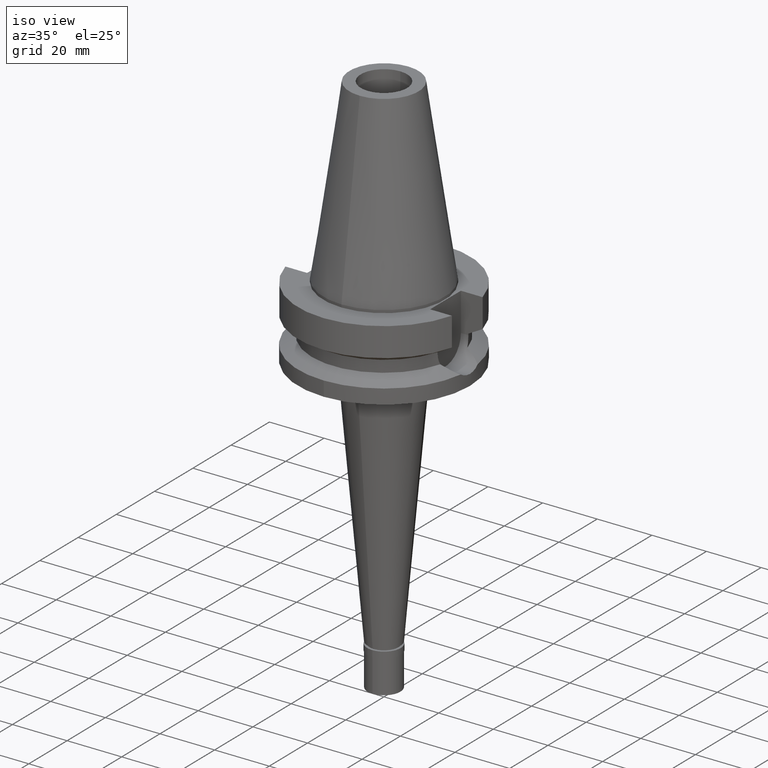
[diagram: clean part render]
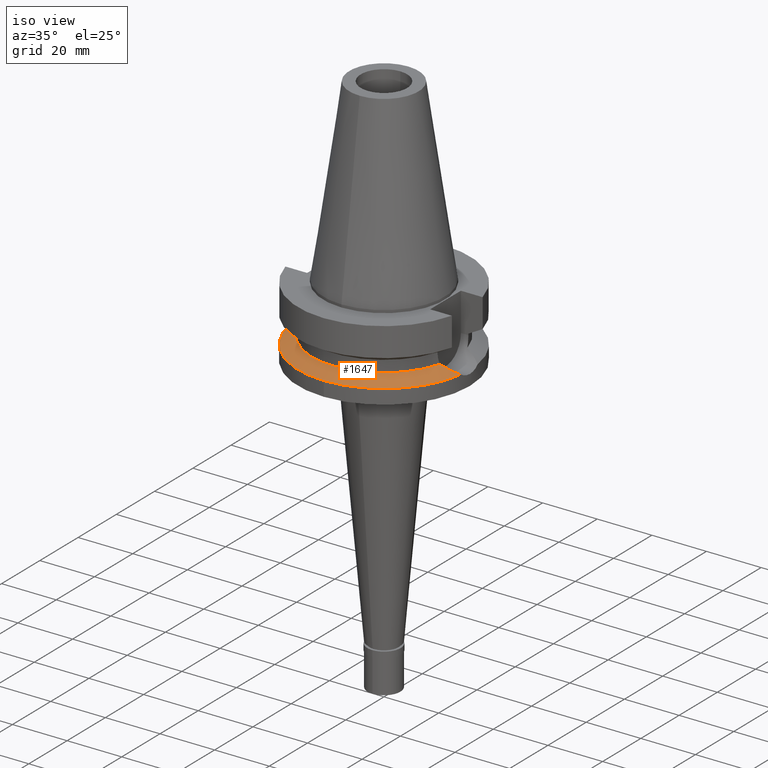
[diagram: same view with one face highlighted and labeled with its STEP entity id]
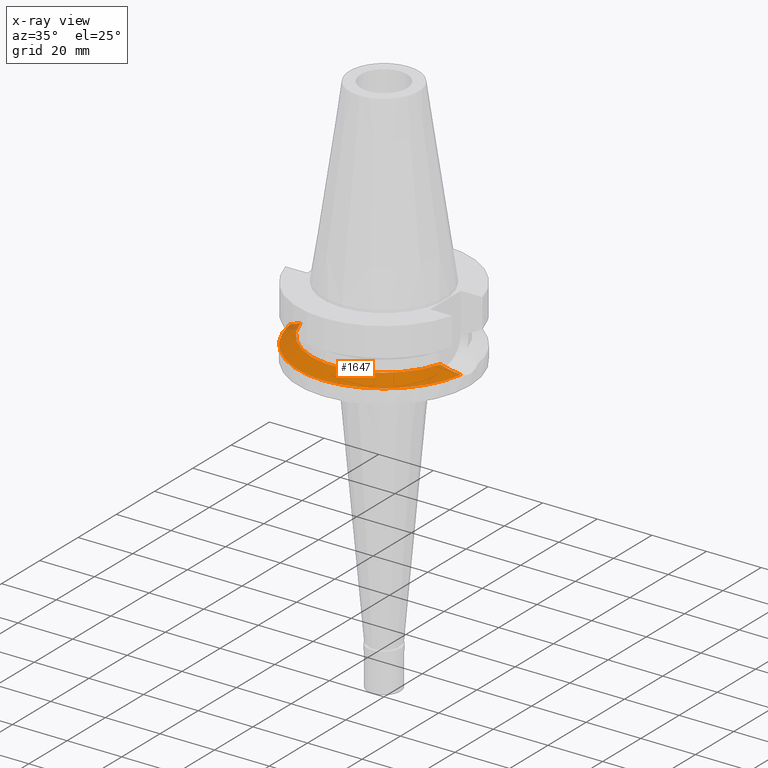
[diagram: x-ray of the same camera — body ghosted, the highlighted face saturated]
A machine part, iso view. The second image highlights one B-rep face of the part: STEP entity #1647.
The next image is the same camera in x-ray: the body ghosted, the highlighted face saturated — about 2% of this face is hidden behind the body in this view.
In plain terms, the highlighted conical surface has half-angle 60 deg.
Its self-contained STEP definition (entity closure, byte-faithful):
#17 = CARTESIAN_POINT ( 'NONE',  ( 0.0000000000000000000, 0.0000000000000000000, -18.74774300138999905 ) ) ;
#89 = CARTESIAN_POINT ( 'NONE',  ( -28.54067266395778191, -6.024391906272358099, -20.28940289609389680 ) ) ;
#97 = CARTESIAN_POINT ( 'NONE',  ( 31.17899877608999759, -4.485536235554000051, -21.63449434733000132 ) ) ;
#144 = FACE_OUTER_BOUND ( 'NONE', #2865, .T. ) ;
#155 = DIRECTION ( 'NONE',  ( 0.0000000000000000000, -1.000000000000000000, 0.0000000000000000000 ) ) ;
#174 = CIRCLE ( 'NONE', #2099, 31.50000000000001421 ) ;
#223 = AXIS2_PLACEMENT_3D ( 'NONE', #862, #370, #1294 ) ;
#256 = VERTEX_POINT ( 'NONE', #2845 ) ;
#343 = CARTESIAN_POINT ( 'NONE',  ( 31.17899877608999759, -4.485536235554000051, -21.63449434733000132 ) ) ;
#370 = DIRECTION ( 'NONE',  ( 0.0000000000000000000, 0.0000000000000000000, -1.000000000000000000 ) ) ;
#460 = EDGE_CURVE ( 'NONE', #1031, #1513, #605, .T. ) ;
#484 = CARTESIAN_POINT ( 'NONE',  ( -28.55026535722807424, -6.020045022374676869, -20.29430434828426755 ) ) ;
#496 = EDGE_CURVE ( 'NONE', #2077, #1031, #174, .T. ) ;
#511 = EDGE_CURVE ( 'NONE', #2221, #2077, #717, .T. ) ;
#527 = CARTESIAN_POINT ( 'NONE',  ( -28.64774411883375649, -5.975529071077017029, -20.34410960387573652 ) ) ;
#540 = CARTESIAN_POINT ( 'NONE',  ( -27.67179419068008528, -6.417423286990037390, -19.84543930676865742 ) ) ;
#605 = CIRCLE ( 'NONE', #2917, 31.50000000000000000 ) ;
#664 = DIRECTION ( 'NONE',  ( -0.9634623335000935818, -0.2678438573619981722, 0.0000000000000000000 ) ) ;
#668 = CARTESIAN_POINT ( 'NONE',  ( -30.42027941170648830, -5.024929265886885155, -21.24839471290173165 ) ) ;
#671 = B_SPLINE_CURVE_WITH_KNOTS ( 'NONE', 3,
 ( #2326, #2734, #668, #1587, #2506, #1642, #784, #1476, #527, #2154, #731, #484, #89, #540, #2109, #2120 ),
 .UNSPECIFIED., .F., .F.,
 ( 4, 2, 2, 1, 1, 1, 1, 2, 2, 4 ),
 ( 0.0000000000000000000, 0.2500000000000359712, 0.3750000000000532907, 0.4375000000000622280, 0.4687500000000663358, 0.4843750000000677236, 0.4921875000000681677, 0.4960937500000680012, 0.5000000000000678346, 1.000000000000000000 ),
 .UNSPECIFIED. ) ;
#695 = ORIENTED_EDGE ( 'NONE', *, *, #511, .F. ) ;
#717 = B_SPLINE_CURVE_WITH_KNOTS ( 'NONE', 3,
 ( #1039, #1084, #1471, #1748, #1989, #1305, #2857, #858, #1292, #2397, #1069, #97 ),
 .UNSPECIFIED., .F., .F.,
 ( 4, 2, 2, 2, 2, 4 ),
 ( 0.0000000000000000000, 0.2499999999999992228, 0.3749999999999985012, 0.4374999999999984457, 0.4999999999999983347, 1.000000000000000000 ),
 .UNSPECIFIED. ) ;
#731 = CARTESIAN_POINT ( 'NONE',  ( -28.56656352109467889, -6.012641916706082057, -20.30263189655120115 ) ) ;
#757 = CARTESIAN_POINT ( 'NONE',  ( 25.53175183775000079, -7.097862220092999941, -18.74774300138999905 ) ) ;
#784 = CARTESIAN_POINT ( 'NONE',  ( -28.98244015599804868, -5.817734468544117910, -20.51508123707000664 ) ) ;
#806 = CIRCLE ( 'NONE', #2046, 26.49999999999998224 ) ;
#830 = DIRECTION ( 'NONE',  ( 0.0000000000000000000, 0.0000000000000000000, -1.000000000000000000 ) ) ;
#858 = CARTESIAN_POINT ( 'NONE',  ( 28.59122636821491170, -6.002246325952560468, -20.31491412762431281 ) ) ;
#862 = CARTESIAN_POINT ( 'NONE',  ( 0.0000000000000000000, 0.0000000000000000000, -20.19111867435999841 ) ) ;
#882 = EDGE_CURVE ( 'NONE', #1513, #256, #671, .T. ) ;
#916 = CARTESIAN_POINT ( 'NONE',  ( -31.17899877608999759, -4.485536235554000051, -21.63449434733000132 ) ) ;
#1031 = VERTEX_POINT ( 'NONE', #1491 ) ;
#1039 = CARTESIAN_POINT ( 'NONE',  ( 25.53175183775000079, -7.097862220092999941, -18.74774300138999905 ) ) ;
#1069 = CARTESIAN_POINT ( 'NONE',  ( 30.52665753622573064, -4.980447080634112567, -21.30239136188286508 ) ) ;
#1084 = CARTESIAN_POINT ( 'NONE',  ( 26.16647802179548421, -6.923386868572039887, -19.07383194564706841 ) ) ;
#1251 = DIRECTION ( 'NONE',  ( 0.0000000000000000000, 0.0000000000000000000, -1.000000000000000000 ) ) ;
#1292 = CARTESIAN_POINT ( 'NONE',  ( 28.71091976997655593, -5.947019778302706783, -20.37603411191519953 ) ) ;
#1294 = DIRECTION ( 'NONE',  ( 0.0000000000000000000, -1.000000000000000000, 0.0000000000000000000 ) ) ;
#1305 = CARTESIAN_POINT ( 'NONE',  ( 28.22507178454848287, -6.164322166826872618, -20.12789907749845142 ) ) ;
#1450 = EDGE_CURVE ( 'NONE', #256, #2221, #806, .T. ) ;
#1471 = CARTESIAN_POINT ( 'NONE',  ( 26.75832028218528080, -6.731990349025804399, -19.37751204129143545 ) ) ;
#1476 = CARTESIAN_POINT ( 'NONE',  ( -28.76043026515289824, -5.923271052275059567, -20.40167939134652286 ) ) ;
#1491 = CARTESIAN_POINT ( 'NONE',  ( 0.0000000000000000000, -31.50000000000000000, -21.63449434733000132 ) ) ;
#1513 = VERTEX_POINT ( 'NONE', #916 ) ;
#1558 = ORIENTED_EDGE ( 'NONE', *, *, #882, .F. ) ;
#1587 = CARTESIAN_POINT ( 'NONE',  ( -29.75901401066320773, -5.412361553543091119, -20.91138741698584624 ) ) ;
#1642 = CARTESIAN_POINT ( 'NONE',  ( -29.16697023079130702, -5.725598983590503899, -20.60929793954885270 ) ) ;
#1647 = ADVANCED_FACE ( 'NONE', ( #144 ), #2825, .T. ) ;
#1656 = ORIENTED_EDGE ( 'NONE', *, *, #1450, .F. ) ;
#1748 = CARTESIAN_POINT ( 'NONE',  ( 27.58175778728647742, -6.427988486835234383, -19.79906983316418945 ) ) ;
#1804 = ORIENTED_EDGE ( 'NONE', *, *, #460, .F. ) ;
#1989 = CARTESIAN_POINT ( 'NONE',  ( 27.84551597473963369, -6.323828137882821387, -19.93394665052614911 ) ) ;
#2046 = AXIS2_PLACEMENT_3D ( 'NONE', #17, #2775, #664 ) ;
#2077 = VERTEX_POINT ( 'NONE', #343 ) ;
#2099 = AXIS2_PLACEMENT_3D ( 'NONE', #2222, #830, #2438 ) ;
#2109 = CARTESIAN_POINT ( 'NONE',  ( -26.67106574595780089, -6.784684349660550673, -19.33306259091535395 ) ) ;
#2120 = CARTESIAN_POINT ( 'NONE',  ( -25.53175183775000079, -7.097862220092999941, -18.74774300138999905 ) ) ;
#2154 = CARTESIAN_POINT ( 'NONE',  ( -28.59098074545001822, -6.001527807513027390, -20.31510773514331447 ) ) ;
#2221 = VERTEX_POINT ( 'NONE', #757 ) ;
#2222 = CARTESIAN_POINT ( 'NONE',  ( 0.0000000000000000000, 0.0000000000000000000, -21.63449434733000132 ) ) ;
#2326 = CARTESIAN_POINT ( 'NONE',  ( -31.17899877608999759, -4.485536235554000051, -21.63449434733000132 ) ) ;
#2397 = CARTESIAN_POINT ( 'NONE',  ( 29.74215856358066290, -5.456843191249715730, -20.90267584589756922 ) ) ;
#2438 = DIRECTION ( 'NONE',  ( 0.9898094849552905306, -0.1423979757318985240, 0.0000000000000000000 ) ) ;
#2506 = CARTESIAN_POINT ( 'NONE',  ( -29.52834489056482070, -5.539287828829688287, -20.79374348404150652 ) ) ;
#2570 = ORIENTED_EDGE ( 'NONE', *, *, #496, .F. ) ;
#2663 = CARTESIAN_POINT ( 'NONE',  ( 0.0000000000000000000, 0.0000000000000000000, -21.63449434733000132 ) ) ;
#2734 = CARTESIAN_POINT ( 'NONE',  ( -30.82013373339949425, -4.757795891532222932, -21.45179832143912080 ) ) ;
#2775 = DIRECTION ( 'NONE',  ( 0.0000000000000000000, 0.0000000000000000000, 1.000000000000000000 ) ) ;
#2825 = CONICAL_SURFACE ( 'NONE', #223, 29.00000000000000000, 1.047197551196400456 ) ;
#2845 = CARTESIAN_POINT ( 'NONE',  ( -25.53175183775000079, -7.097862220092999941, -18.74774300138999905 ) ) ;
#2857 = CARTESIAN_POINT ( 'NONE',  ( 28.34891014258960951, -6.110608633613471952, -20.19115699831655064 ) ) ;
#2865 = EDGE_LOOP ( 'NONE', ( #1804, #2570, #695, #1656, #1558 ) ) ;
#2917 = AXIS2_PLACEMENT_3D ( 'NONE', #2663, #1251, #155 ) ;